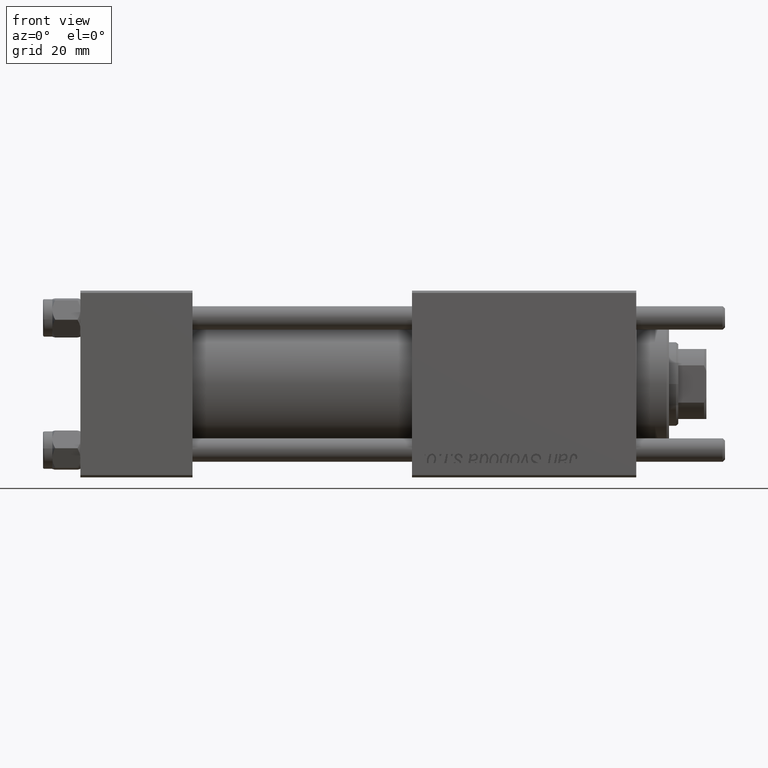
[diagram: clean part render]
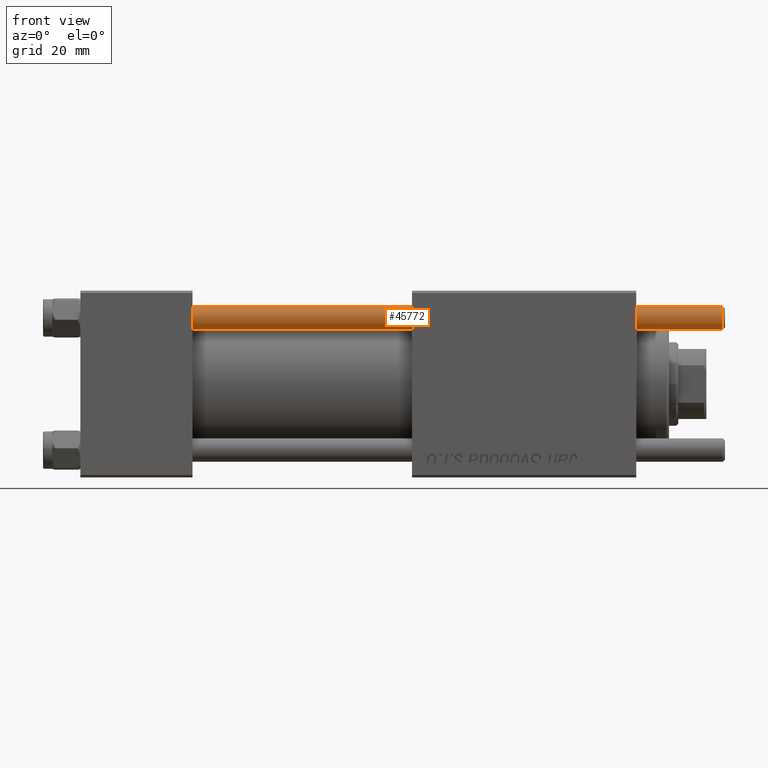
[diagram: same view with one face highlighted and labeled with its STEP entity id]
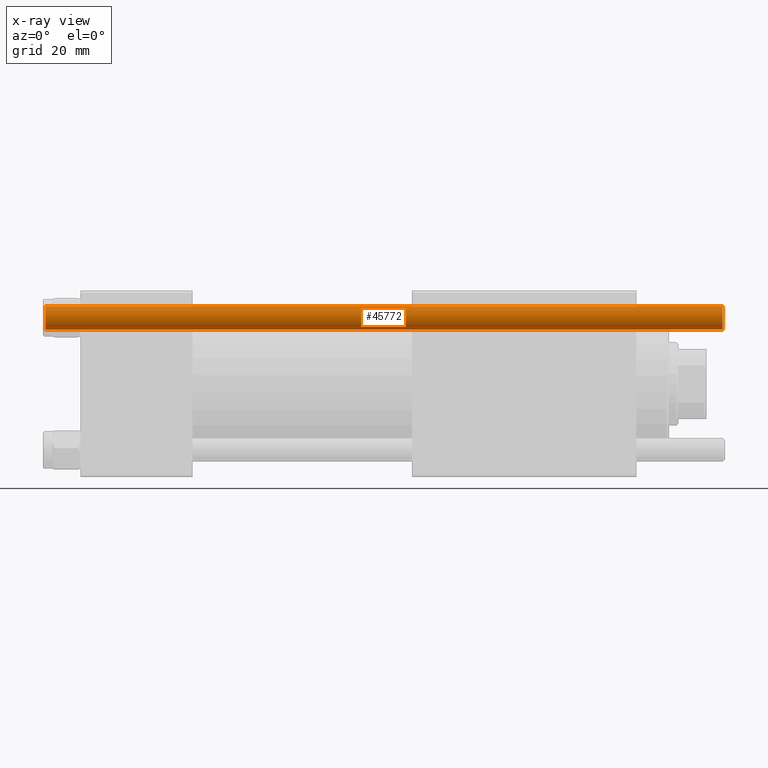
[diagram: x-ray of the same camera — body ghosted, the highlighted face saturated]
A machine part, front view. The second image highlights one B-rep face of the part: STEP entity #45772.
The next image is the same camera in x-ray: the body ghosted, the highlighted face saturated — about 0% of this face is hidden behind the body in this view.
In plain terms, the highlighted cylindrical surface (edge-blend (fillet) strip) has radius 2.5 mm, axis along (-1, 0, -0).
Its self-contained STEP definition (entity closure, byte-faithful):
#764 = VECTOR ( 'NONE', #5032, 1000.000000000000000 ) ;
#2696 = CIRCLE ( 'NONE', #28355, 2.500000000000000000 ) ;
#3171 = CARTESIAN_POINT ( 'NONE',  ( 0.000000000000000000, 0.000000000000000000, 145.5000000000000284 ) ) ;
#4891 = VERTEX_POINT ( 'NONE', #51105 ) ;
#5032 = DIRECTION ( 'NONE',  ( -0.000000000000000000, -0.000000000000000000, -1.000000000000000000 ) ) ;
#9529 = DIRECTION ( 'NONE',  ( -1.000000000000000000, 0.000000000000000000, 0.000000000000000000 ) ) ;
#10928 = LINE ( 'NONE', #51315, #24609 ) ;
#13377 = ORIENTED_EDGE ( 'NONE', *, *, #46584, .T. ) ;
#13514 = EDGE_CURVE ( 'NONE', #55404, #4891, #29817, .T. ) ;
#19626 = VERTEX_POINT ( 'NONE', #42199 ) ;
#20660 = DIRECTION ( 'NONE',  ( 0.000000000000000000, 0.000000000000000000, -1.000000000000000000 ) ) ;
#21606 = AXIS2_PLACEMENT_3D ( 'NONE', #49957, #45102, #36215 ) ;
#24042 = CARTESIAN_POINT ( 'NONE',  ( 2.500000000000000000, 3.061616997868383141E-16, 0.5000000000000559552 ) ) ;
#24609 = VECTOR ( 'NONE', #37850, 1000.000000000000000 ) ;
#25556 = EDGE_CURVE ( 'NONE', #19626, #55404, #44875, .T. ) ;
#28355 = AXIS2_PLACEMENT_3D ( 'NONE', #3171, #20660, #51039 ) ;
#29817 = CIRCLE ( 'NONE', #21606, 2.500000000000000000 ) ;
#31040 = CARTESIAN_POINT ( 'NONE',  ( 0.000000000000000000, 0.000000000000000000, 146.0000000000000000 ) ) ;
#31503 = EDGE_CURVE ( 'NONE', #39378, #4891, #10928, .T. ) ;
#32608 = EDGE_LOOP ( 'NONE', ( #13377, #52754, #35501, #47892 ) ) ;
#35501 = ORIENTED_EDGE ( 'NONE', *, *, #13514, .T. ) ;
#35896 = FACE_OUTER_BOUND ( 'NONE', #32608, .T. ) ;
#36215 = DIRECTION ( 'NONE',  ( 1.000000000000000000, 0.000000000000000000, 0.000000000000000000 ) ) ;
#37850 = DIRECTION ( 'NONE',  ( -0.000000000000000000, -0.000000000000000000, -1.000000000000000000 ) ) ;
#39378 = VERTEX_POINT ( 'NONE', #55374 ) ;
#42199 = CARTESIAN_POINT ( 'NONE',  ( 2.500000000000000000, 3.061616997868383141E-16, 145.5000000000000284 ) ) ;
#44875 = LINE ( 'NONE', #54039, #764 ) ;
#45102 = DIRECTION ( 'NONE',  ( -0.000000000000000000, -0.000000000000000000, 1.000000000000000000 ) ) ;
#45772 = ADVANCED_FACE ( 'NONE', ( #35896 ), #53659, .T. ) ;
#46584 = EDGE_CURVE ( 'NONE', #39378, #19626, #2696, .T. ) ;
#47892 = ORIENTED_EDGE ( 'NONE', *, *, #31503, .F. ) ;
#49957 = CARTESIAN_POINT ( 'NONE',  ( 0.000000000000000000, 0.000000000000000000, 0.5000000000000559552 ) ) ;
#51039 = DIRECTION ( 'NONE',  ( 1.000000000000000000, 0.000000000000000000, 0.000000000000000000 ) ) ;
#51105 = CARTESIAN_POINT ( 'NONE',  ( -2.500000000000000000, 0.000000000000000000, 0.5000000000000559552 ) ) ;
#51315 = CARTESIAN_POINT ( 'NONE',  ( -2.500000000000000000, 0.000000000000000000, 146.0000000000000000 ) ) ;
#52144 = AXIS2_PLACEMENT_3D ( 'NONE', #31040, #52540, #9529 ) ;
#52540 = DIRECTION ( 'NONE',  ( -0.000000000000000000, -0.000000000000000000, -1.000000000000000000 ) ) ;
#52754 = ORIENTED_EDGE ( 'NONE', *, *, #25556, .T. ) ;
#53659 = CYLINDRICAL_SURFACE ( 'NONE', #52144, 2.500000000000000000 ) ;
#54039 = CARTESIAN_POINT ( 'NONE',  ( 2.500000000000000000, 3.061616997868383141E-16, 146.0000000000000000 ) ) ;
#55374 = CARTESIAN_POINT ( 'NONE',  ( -2.500000000000000000, 0.000000000000000000, 145.5000000000000284 ) ) ;
#55404 = VERTEX_POINT ( 'NONE', #24042 ) ;